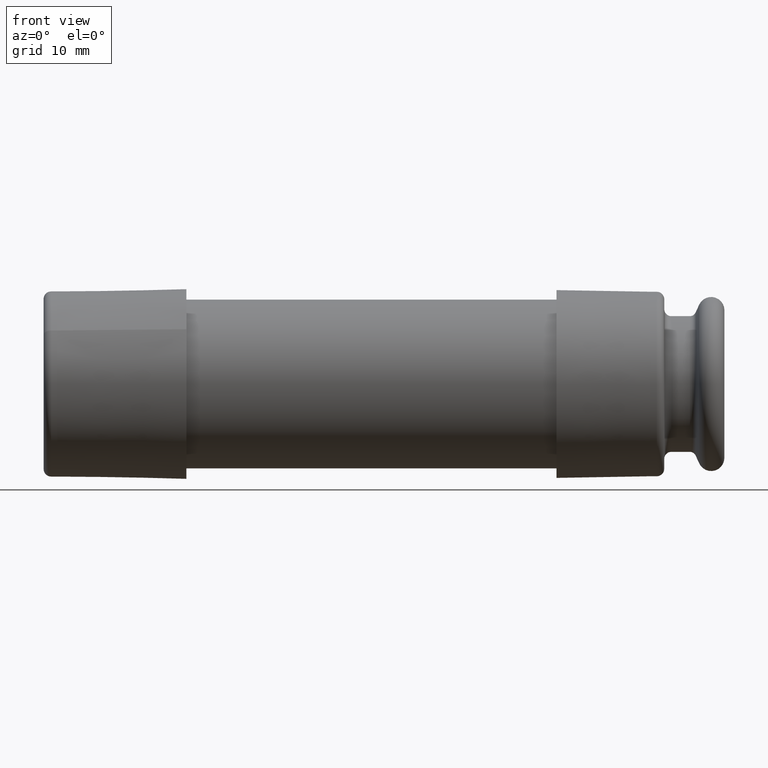
[diagram: clean part render]
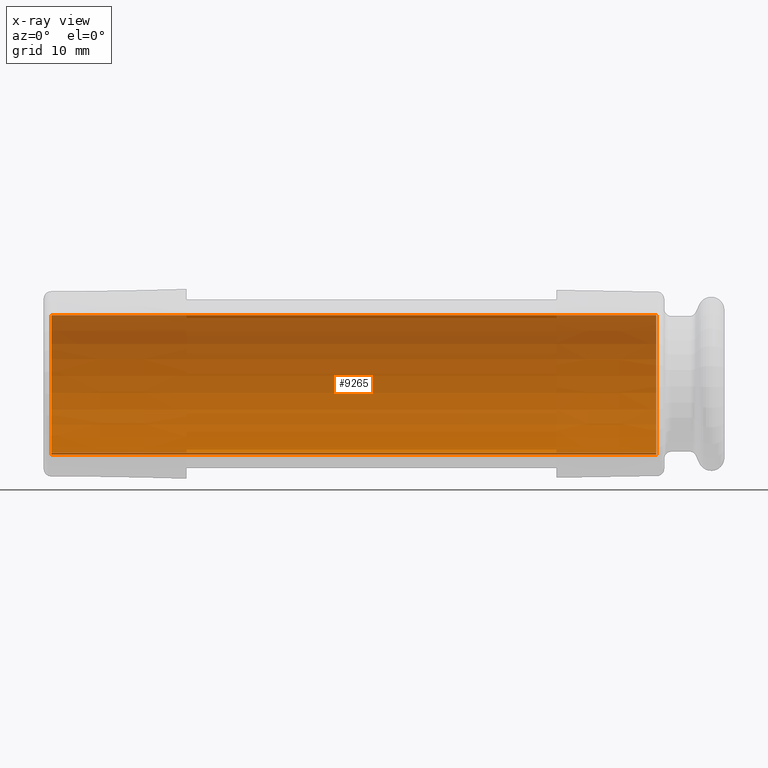
[diagram: x-ray — body ghosted, one internal face saturated and labeled with its STEP entity id]
A machine part, front view, then the same camera in x-ray: the body is ghosted and one INTERNAL B-rep face — a face not visible from any outside direction — is saturated and labeled: STEP entity #9265.
In plain terms, the highlighted cylindrical surface (partial cylindrical patch) has radius 7.9375 mm, axis along (1, 0, -0).
Its self-contained STEP definition (entity closure, byte-faithful):
#128 = VERTEX_POINT ( 'NONE', #4477 ) ;
#207 = DIRECTION ( 'NONE',  ( 1.000000000000000000, 1.700911416085008300E-016, -6.808368128483539900E-017 ) ) ;
#306 = CARTESIAN_POINT ( 'NONE',  ( 1.445741720013047800, 3.427380604109095900E-016, -1.815110943053711600E-016 ) ) ;
#312 = ORIENTED_EDGE ( 'NONE', *, *, #7609, .T. ) ;
#343 = VECTOR ( 'NONE', #6127, 39.37007874015748100 ) ;
#749 = AXIS2_PLACEMENT_3D ( 'NONE', #306, #5834, #10988 ) ;
#921 = VERTEX_POINT ( 'NONE', #3034 ) ;
#1326 = CARTESIAN_POINT ( 'NONE',  ( -1.220258279986952100, 0.07640406836384114300, 0.3030159539322204200 ) ) ;
#1748 = EDGE_CURVE ( 'NONE', #9338, #921, #10960, .T. ) ;
#2477 = DIRECTION ( 'NONE',  ( 0.0000000000000000000, -0.2444930187642919100, -0.9696510525831050200 ) ) ;
#3034 = CARTESIAN_POINT ( 'NONE',  ( 1.445741720013047800, -0.07640406836384115700, -0.3030159539322204200 ) ) ;
#4396 = DIRECTION ( 'NONE',  ( 0.0000000000000000000, 0.2444930187642919100, 0.9696510525831050200 ) ) ;
#4477 = CARTESIAN_POINT ( 'NONE',  ( -1.220258279986952100, 0.07640406836384135100, 0.3030159539322202500 ) ) ;
#4977 = VECTOR ( 'NONE', #207, 39.37007874015748100 ) ;
#5278 = DIRECTION ( 'NONE',  ( -1.000000000000000000, -1.700911416085008300E-016, 6.808368128483539900E-017 ) ) ;
#5306 = EDGE_LOOP ( 'NONE', ( #312, #6339, #10336, #9126 ) ) ;
#5834 = DIRECTION ( 'NONE',  ( -1.000000000000000000, -1.700911416085008300E-016, 6.808368128483539900E-017 ) ) ;
#6127 = DIRECTION ( 'NONE',  ( 1.000000000000000000, 1.700911416085008300E-016, -6.808368128483539900E-017 ) ) ;
#6339 = ORIENTED_EDGE ( 'NONE', *, *, #7181, .T. ) ;
#6358 = LINE ( 'NONE', #11383, #4977 ) ;
#6859 = CARTESIAN_POINT ( 'NONE',  ( -1.220258279986952100, -0.07640406836384115700, -0.3030159539322204200 ) ) ;
#7068 = EDGE_CURVE ( 'NONE', #128, #9338, #10057, .T. ) ;
#7181 = EDGE_CURVE ( 'NONE', #10711, #921, #6358, .T. ) ;
#7390 = AXIS2_PLACEMENT_3D ( 'NONE', #9108, #5278, #2477 ) ;
#7609 = EDGE_CURVE ( 'NONE', #128, #10711, #7730, .T. ) ;
#7730 = CIRCLE ( 'NONE', #7390, 0.3125000000000001100 ) ;
#9108 = CARTESIAN_POINT ( 'NONE',  ( -1.220258279986952100, -1.107249231173536100E-016, 0.0000000000000000000 ) ) ;
#9126 = ORIENTED_EDGE ( 'NONE', *, *, #7068, .F. ) ;
#9265 = ADVANCED_FACE ( 'NONE', ( #10536 ), #11845, .F. ) ;
#9338 = VERTEX_POINT ( 'NONE', #10148 ) ;
#9405 = AXIS2_PLACEMENT_3D ( 'NONE', #11914, #11447, #4396 ) ;
#10057 = LINE ( 'NONE', #1326, #343 ) ;
#10148 = CARTESIAN_POINT ( 'NONE',  ( 1.445741720013047800, 0.07640406836384133800, 0.3030159539322201900 ) ) ;
#10336 = ORIENTED_EDGE ( 'NONE', *, *, #1748, .F. ) ;
#10536 = FACE_OUTER_BOUND ( 'NONE', #5306, .T. ) ;
#10711 = VERTEX_POINT ( 'NONE', #6859 ) ;
#10960 = CIRCLE ( 'NONE', #749, 0.3125000000000001100 ) ;
#10988 = DIRECTION ( 'NONE',  ( 0.0000000000000000000, -0.2444930187642919100, -0.9696510525831050200 ) ) ;
#11383 = CARTESIAN_POINT ( 'NONE',  ( -1.220258279986952100, -0.07640406836384139300, -0.3030159539322204200 ) ) ;
#11447 = DIRECTION ( 'NONE',  ( 1.000000000000000000, 1.700911416085008300E-016, -6.808368128483539900E-017 ) ) ;
#11845 = CYLINDRICAL_SURFACE ( 'NONE', #9405, 0.3125000000000001100 ) ;
#11914 = CARTESIAN_POINT ( 'NONE',  ( -1.220258279986952100, -1.107249231173536100E-016, 0.0000000000000000000 ) ) ;